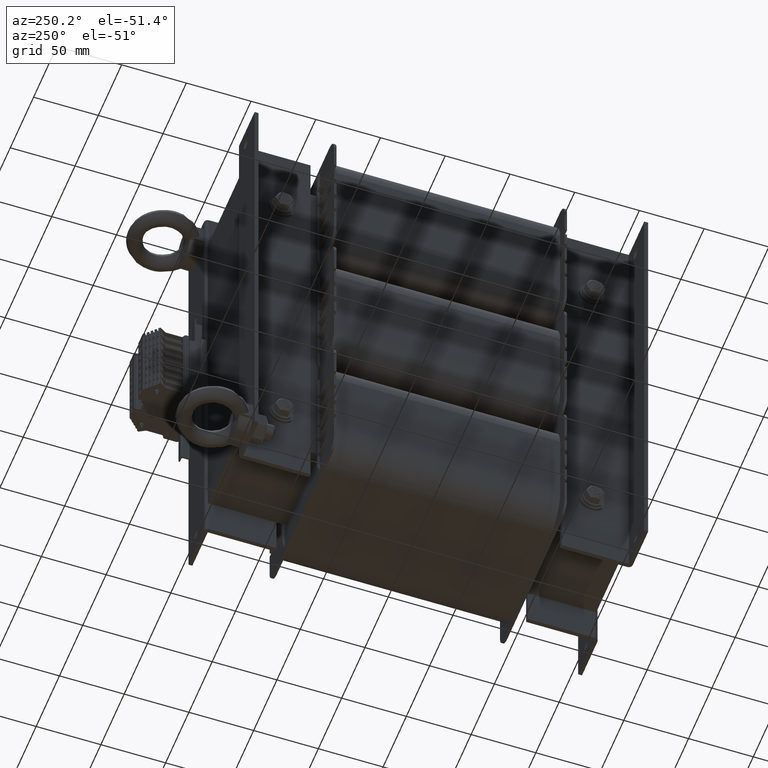
[diagram: clean part render]
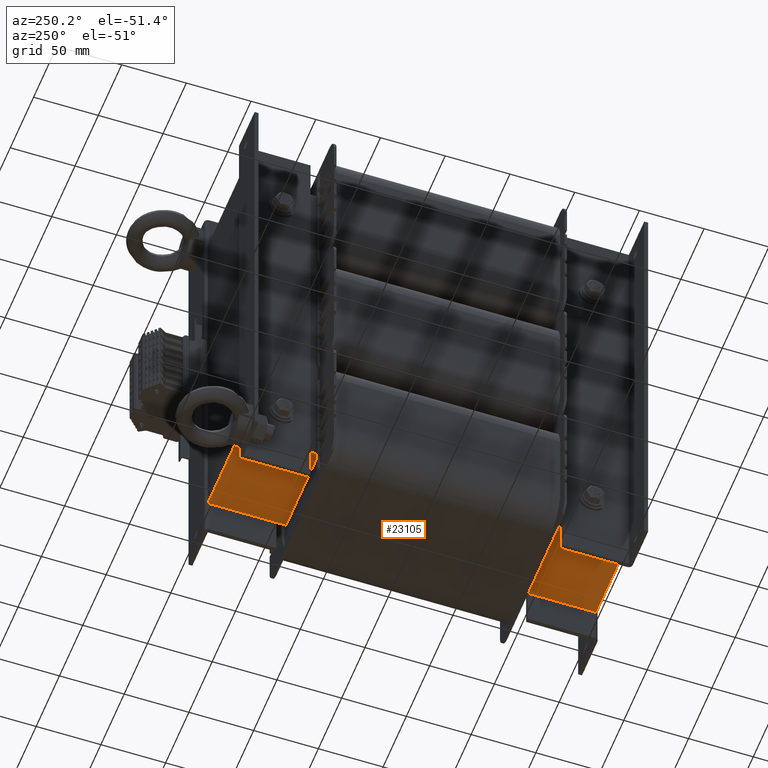
[diagram: same view with one face highlighted and labeled with its STEP entity id]
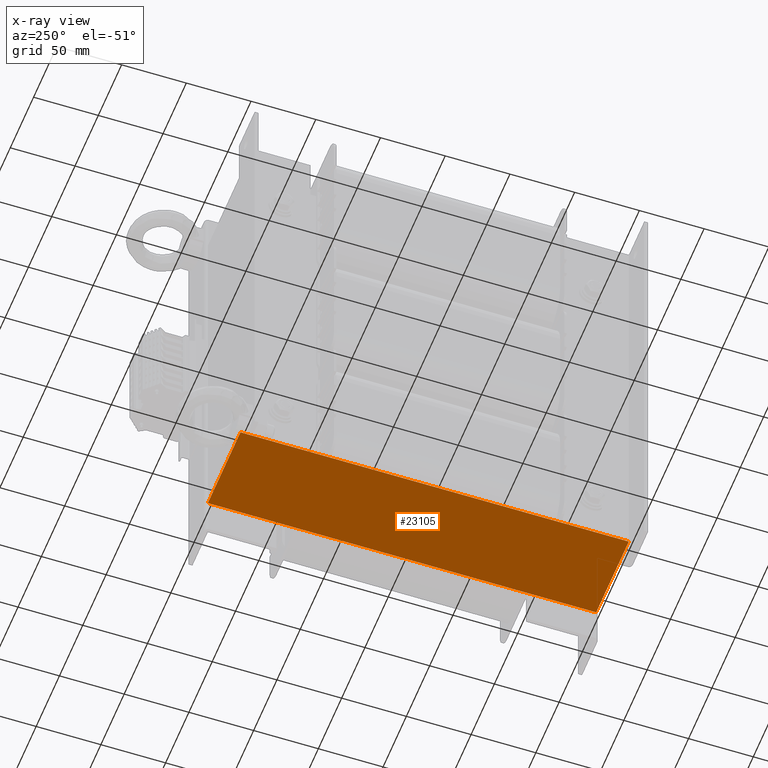
[diagram: x-ray of the same camera — body ghosted, the highlighted face saturated]
A machine part, auxiliary view. The second image highlights one B-rep face of the part: STEP entity #23105.
The next image is the same camera in x-ray: the body ghosted, the highlighted face saturated — about 0% of this face is hidden behind the body in this view.
In plain terms, the highlighted planar face has unit normal (0, -0, -1).
Its self-contained STEP definition (entity closure, byte-faithful):
#2029=FACE_OUTER_BOUND('',#3264,.T.);
#3264=EDGE_LOOP('',(#15486,#15487,#15488,#15489));
#4588=LINE('',#33355,#7224);
#4589=LINE('',#33357,#7225);
#4590=LINE('',#33359,#7226);
#4591=LINE('',#33360,#7227);
#7224=VECTOR('',#26736,10.);
#7225=VECTOR('',#26737,10.);
#7226=VECTOR('',#26738,10.);
#7227=VECTOR('',#26739,10.);
#9856=VERTEX_POINT('',#33353);
#9857=VERTEX_POINT('',#33354);
#9858=VERTEX_POINT('',#33356);
#9859=VERTEX_POINT('',#33358);
#12084=EDGE_CURVE('',#9856,#9857,#4588,.T.);
#12085=EDGE_CURVE('',#9857,#9858,#4589,.T.);
#12086=EDGE_CURVE('',#9859,#9858,#4590,.T.);
#12087=EDGE_CURVE('',#9856,#9859,#4591,.T.);
#15486=ORIENTED_EDGE('',*,*,#12084,.T.);
#15487=ORIENTED_EDGE('',*,*,#12085,.T.);
#15488=ORIENTED_EDGE('',*,*,#12086,.F.);
#15489=ORIENTED_EDGE('',*,*,#12087,.F.);
#22226=PLANE('',#24694);
#23105=ADVANCED_FACE('',(#2029),#22226,.T.);
#24694=AXIS2_PLACEMENT_3D('',#33352,#26734,#26735);
#26734=DIRECTION('center_axis',(0.,0.,-1.));
#26735=DIRECTION('ref_axis',(0.,1.,0.));
#26736=DIRECTION('',(0.,1.,0.));
#26737=DIRECTION('',(1.,0.,0.));
#26738=DIRECTION('',(0.,1.,0.));
#26739=DIRECTION('',(1.,0.,0.));
#33352=CARTESIAN_POINT('Origin',(0.,0.,0.));
#33353=CARTESIAN_POINT('',(0.,0.,0.));
#33354=CARTESIAN_POINT('',(0.,300.,0.));
#33355=CARTESIAN_POINT('',(0.,0.,0.));
#33356=CARTESIAN_POINT('',(70.,300.,0.));
#33357=CARTESIAN_POINT('',(0.,300.,0.));
#33358=CARTESIAN_POINT('',(70.,0.,0.));
#33359=CARTESIAN_POINT('',(70.,0.,0.));
#33360=CARTESIAN_POINT('',(0.,0.,0.));